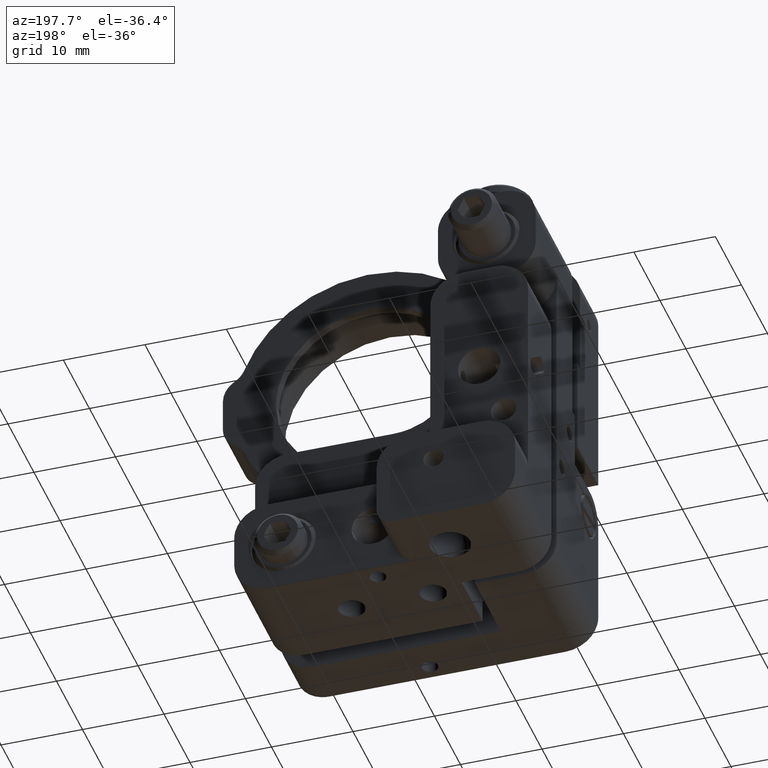
[diagram: clean part render]
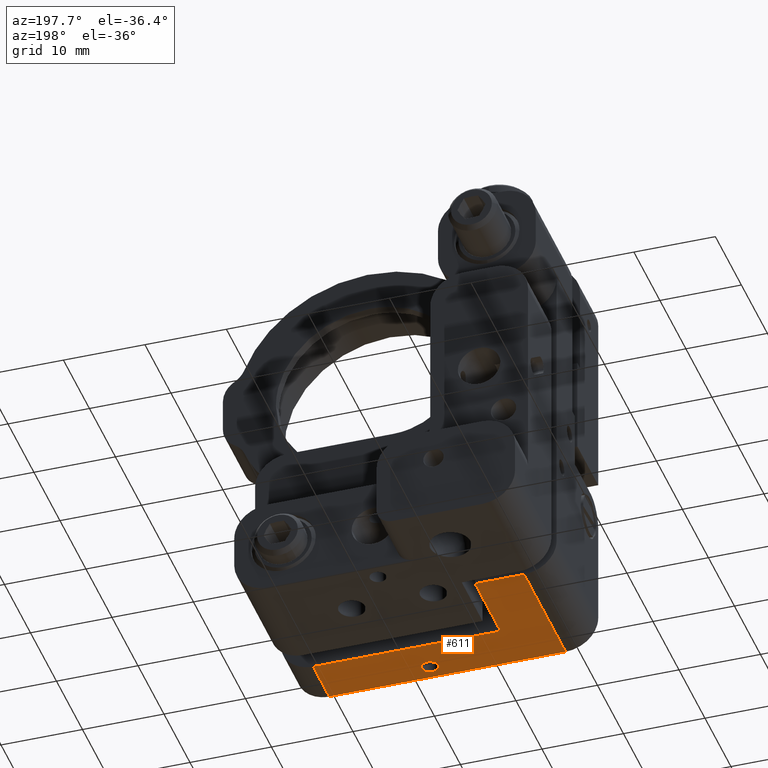
[diagram: same view with one face highlighted and labeled with its STEP entity id]
A machine part, auxiliary view. The second image highlights one B-rep face of the part: STEP entity #611.
In plain terms, the highlighted face is a freeform B-spline surface patch.
Its self-contained STEP definition (entity closure, byte-faithful):
#420=FACE_BOUND('',#1531,.T.);
#611=ADVANCED_FACE('',(#1058,#420),#15889,.T.);
#1058=FACE_OUTER_BOUND('',#1530,.T.);
#1530=EDGE_LOOP('',(#2690,#2691,#2692,#2693,#2694,#2695));
#1531=EDGE_LOOP('',(#2696,#2697));
#2690=ORIENTED_EDGE('',*,*,#12959,.T.);
#2691=ORIENTED_EDGE('',*,*,#12960,.T.);
#2692=ORIENTED_EDGE('',*,*,#12961,.T.);
#2693=ORIENTED_EDGE('',*,*,#12962,.T.);
#2694=ORIENTED_EDGE('',*,*,#12940,.F.);
#2695=ORIENTED_EDGE('',*,*,#12936,.F.);
#2696=ORIENTED_EDGE('',*,*,#12963,.T.);
#2697=ORIENTED_EDGE('',*,*,#12790,.F.);
#4783=PCURVE('',#16044,#7157);
#5027=PCURVE('',#15885,#7401);
#5035=PCURVE('',#15886,#7409);
#5064=PCURVE('',#15889,#7438);
#5065=PCURVE('',#15889,#7439);
#5066=PCURVE('',#15889,#7440);
#5067=PCURVE('',#15889,#7441);
#5068=PCURVE('',#15889,#7442);
#5069=PCURVE('',#15889,#7443);
#5070=PCURVE('',#15889,#7444);
#5071=PCURVE('',#15889,#7445);
#5072=PCURVE('',#15890,#7446);
#5135=PCURVE('',#16081,#7509);
#5137=PCURVE('',#16082,#7511);
#5280=PCURVE('',#15901,#7654);
#5295=PCURVE('',#16099,#7669);
#7157=DEFINITIONAL_REPRESENTATION('',(#9510),#34671);
#7401=DEFINITIONAL_REPRESENTATION('',(#9782),#34671);
#7409=DEFINITIONAL_REPRESENTATION('',(#9788),#34671);
#7438=DEFINITIONAL_REPRESENTATION('',(#9824),#34671);
#7439=DEFINITIONAL_REPRESENTATION('',(#9826),#34671);
#7440=DEFINITIONAL_REPRESENTATION('',(#9828),#34671);
#7441=DEFINITIONAL_REPRESENTATION('',(#9830),#34671);
#7442=DEFINITIONAL_REPRESENTATION('',(#9831),#34671);
#7443=DEFINITIONAL_REPRESENTATION('',(#9832),#34671);
#7444=DEFINITIONAL_REPRESENTATION('',(#14163),#34671);
#7445=DEFINITIONAL_REPRESENTATION('',(#14164),#34671);
#7446=DEFINITIONAL_REPRESENTATION('',(#9833),#34671);
#7509=DEFINITIONAL_REPRESENTATION('',(#9872),#34671);
#7511=DEFINITIONAL_REPRESENTATION('',(#9874),#34671);
#7654=DEFINITIONAL_REPRESENTATION('',(#10007),#34671);
#7669=DEFINITIONAL_REPRESENTATION('',(#10017),#34671);
#9510=B_SPLINE_CURVE_WITH_KNOTS('',1,(#21474,#21475),.UNSPECIFIED.,.F.,
 .F.,(2,2),(0.,3.14159265358979),.UNSPECIFIED.);
#9781=B_SPLINE_CURVE_WITH_KNOTS('',1,(#22861,#22862),.UNSPECIFIED.,.F.,
 .F.,(2,2),(0.,22.9999999999997),.UNSPECIFIED.);
#9782=B_SPLINE_CURVE_WITH_KNOTS('',1,(#22863,#22864),.UNSPECIFIED.,.F.,
 .F.,(2,2),(0.,22.9999999999997),.UNSPECIFIED.);
#9787=B_SPLINE_CURVE_WITH_KNOTS('',1,(#22899,#22900),.UNSPECIFIED.,.F.,
 .F.,(2,2),(0.,9.8),.UNSPECIFIED.);
#9788=B_SPLINE_CURVE_WITH_KNOTS('',1,(#22901,#22902),.UNSPECIFIED.,.F.,
 .F.,(2,2),(0.,9.8),.UNSPECIFIED.);
#9823=B_SPLINE_CURVE_WITH_KNOTS('',1,(#23012,#23013),.UNSPECIFIED.,.F.,
 .F.,(2,2),(-6.2,0.),.UNSPECIFIED.);
#9824=B_SPLINE_CURVE_WITH_KNOTS('',1,(#23014,#23015),.UNSPECIFIED.,.F.,
 .F.,(2,2),(-6.2,0.),.UNSPECIFIED.);
#9825=B_SPLINE_CURVE_WITH_KNOTS('',1,(#23016,#23017),.UNSPECIFIED.,.F.,
 .F.,(2,2),(0.,28.9999999999997),.UNSPECIFIED.);
#9826=B_SPLINE_CURVE_WITH_KNOTS('',1,(#23018,#23019),.UNSPECIFIED.,.F.,
 .F.,(2,2),(0.,28.9999999999997),.UNSPECIFIED.);
#9827=B_SPLINE_CURVE_WITH_KNOTS('',1,(#23020,#23021),.UNSPECIFIED.,.F.,
 .F.,(2,2),(0.,16.),.UNSPECIFIED.);
#9828=B_SPLINE_CURVE_WITH_KNOTS('',1,(#23022,#23023),.UNSPECIFIED.,.F.,
 .F.,(2,2),(0.,16.),.UNSPECIFIED.);
#9829=B_SPLINE_CURVE_WITH_KNOTS('',1,(#23024,#23025),.UNSPECIFIED.,.F.,
 .F.,(2,2),(-6.,0.),.UNSPECIFIED.);
#9830=B_SPLINE_CURVE_WITH_KNOTS('',1,(#23026,#23027),.UNSPECIFIED.,.F.,
 .F.,(2,2),(-6.,0.),.UNSPECIFIED.);
#9831=B_SPLINE_CURVE_WITH_KNOTS('',1,(#23028,#23029),.UNSPECIFIED.,.F.,
 .F.,(2,2),(0.,9.8),.UNSPECIFIED.);
#9832=B_SPLINE_CURVE_WITH_KNOTS('',1,(#23030,#23031),.UNSPECIFIED.,.F.,
 .F.,(2,2),(0.,22.9999999999997),.UNSPECIFIED.);
#9833=B_SPLINE_CURVE_WITH_KNOTS('',1,(#23047,#23048),.UNSPECIFIED.,.F.,
 .F.,(2,2),(-6.,0.),.UNSPECIFIED.);
#9872=B_SPLINE_CURVE_WITH_KNOTS('',1,(#23280,#23281),.UNSPECIFIED.,.F.,
 .F.,(2,2),(-6.2,0.),.UNSPECIFIED.);
#9874=B_SPLINE_CURVE_WITH_KNOTS('',1,(#23284,#23285),.UNSPECIFIED.,.F.,
 .F.,(2,2),(0.,16.),.UNSPECIFIED.);
#10007=B_SPLINE_CURVE_WITH_KNOTS('',1,(#23779,#23780),.UNSPECIFIED.,.F.,
 .F.,(2,2),(0.,28.9999999999997),.UNSPECIFIED.);
#10017=B_SPLINE_CURVE_WITH_KNOTS('',1,(#23844,#23845),.UNSPECIFIED.,.F.,
 .F.,(2,2),(-3.14159265358979,0.),.UNSPECIFIED.);
#11576=SURFACE_CURVE('',#14025,(#4783,#5071),.PCURVE_S1.);
#11722=SURFACE_CURVE('',#9781,(#5027,#5069),.PCURVE_S1.);
#11726=SURFACE_CURVE('',#9787,(#5035,#5068),.PCURVE_S1.);
#11745=SURFACE_CURVE('',#9823,(#5064,#5135),.PCURVE_S1.);
#11746=SURFACE_CURVE('',#9825,(#5065,#5280),.PCURVE_S1.);
#11747=SURFACE_CURVE('',#9827,(#5066,#5137),.PCURVE_S1.);
#11748=SURFACE_CURVE('',#9829,(#5067,#5072),.PCURVE_S1.);
#11749=SURFACE_CURVE('',#14162,(#5070,#5295),.PCURVE_S1.);
#12790=EDGE_CURVE('',#15223,#15224,#11576,.T.);
#12936=EDGE_CURVE('',#15326,#15327,#11722,.T.);
#12940=EDGE_CURVE('',#15327,#15330,#11726,.T.);
#12959=EDGE_CURVE('',#15326,#15342,#11745,.T.);
#12960=EDGE_CURVE('',#15342,#15343,#11746,.T.);
#12961=EDGE_CURVE('',#15343,#15344,#11747,.T.);
#12962=EDGE_CURVE('',#15344,#15330,#11748,.T.);
#12963=EDGE_CURVE('',#15223,#15224,#11749,.T.);
#14025=(
BOUNDED_CURVE()
B_SPLINE_CURVE(2,(#21469,#21470,#21471,#21472,#21473),.UNSPECIFIED.,.F.,
 .F.)
B_SPLINE_CURVE_WITH_KNOTS((3,2,3),(0.,1.57079632679489,3.14159265358979),
 .UNSPECIFIED.)
CURVE()
GEOMETRIC_REPRESENTATION_ITEM()
RATIONAL_B_SPLINE_CURVE((1.,0.707106781186547,1.,0.707106781186548,1.))
REPRESENTATION_ITEM('')
);
#14162=(
BOUNDED_CURVE()
B_SPLINE_CURVE(2,(#23032,#23033,#23034,#23035,#23036),.UNSPECIFIED.,.F.,
 .F.)
B_SPLINE_CURVE_WITH_KNOTS((3,2,3),(-3.14159265358979,-1.5707963267949,0.),
 .UNSPECIFIED.)
CURVE()
GEOMETRIC_REPRESENTATION_ITEM()
RATIONAL_B_SPLINE_CURVE((1.,0.707106781186548,1.,0.707106781186548,1.))
REPRESENTATION_ITEM('')
);
#14163=(
BOUNDED_CURVE()
B_SPLINE_CURVE(2,(#23037,#23038,#23039,#23040,#23041),.UNSPECIFIED.,.F.,
 .F.)
B_SPLINE_CURVE_WITH_KNOTS((3,2,3),(-3.14159265358979,-1.5707963267949,0.),
 .UNSPECIFIED.)
CURVE()
GEOMETRIC_REPRESENTATION_ITEM()
RATIONAL_B_SPLINE_CURVE((1.,0.707106781186548,1.,0.707106781186548,1.))
REPRESENTATION_ITEM('')
);
#14164=(
BOUNDED_CURVE()
B_SPLINE_CURVE(2,(#23042,#23043,#23044,#23045,#23046),.UNSPECIFIED.,.F.,
 .F.)
B_SPLINE_CURVE_WITH_KNOTS((3,2,3),(0.,1.5707963267949,3.14159265358979),
 .UNSPECIFIED.)
CURVE()
GEOMETRIC_REPRESENTATION_ITEM()
RATIONAL_B_SPLINE_CURVE((1.,0.707106781186548,1.,0.707106781186548,1.))
REPRESENTATION_ITEM('')
);
#15223=VERTEX_POINT('',#21056);
#15224=VERTEX_POINT('',#21057);
#15326=VERTEX_POINT('',#21159);
#15327=VERTEX_POINT('',#21160);
#15330=VERTEX_POINT('',#21163);
#15342=VERTEX_POINT('',#21175);
#15343=VERTEX_POINT('',#21176);
#15344=VERTEX_POINT('',#21177);
#15885=B_SPLINE_SURFACE_WITH_KNOTS('',1,1,((#20553,#20554),(#20555,#20556)),
 .UNSPECIFIED.,.F.,.F.,.F.,(2,2),(2,2),(-32.6399999999997,-4.39648317751562E-14),
(-2.22044604925031E-16,14.64),.UNSPECIFIED.);
#15886=B_SPLINE_SURFACE_WITH_KNOTS('',1,1,((#20557,#20558),(#20559,#20560)),
 .UNSPECIFIED.,.F.,.F.,.F.,(2,2),(2,2),(-9.84,-3.33066907387547E-16),(4.44089209850063E-16,
12.),.UNSPECIFIED.);
#15889=B_SPLINE_SURFACE_WITH_KNOTS('',1,1,((#20605,#20606),(#20607,#20608)),
 .UNSPECIFIED.,.F.,.F.,.F.,(2,2),(2,2),(0.,19.44),(-35.0399999999997,-3.24185123190546E-14),
 .UNSPECIFIED.);
#15890=B_SPLINE_SURFACE_WITH_KNOTS('',1,1,((#20609,#20610),(#20611,#20612)),
 .UNSPECIFIED.,.F.,.F.,.F.,(2,2),(2,2),(-44.6399999999998,-3.37507799486048E-14),
(2.93098878501041E-14,50.64),.UNSPECIFIED.);
#15901=B_SPLINE_SURFACE_WITH_KNOTS('',1,1,((#20995,#20996),(#20997,#20998)),
 .UNSPECIFIED.,.F.,.F.,.F.,(2,2),(2,2),(4.39648317751562E-14,44.6399999999997),
(-3.10862446895044E-15,20.64),.UNSPECIFIED.);
#16044=(
BOUNDED_SURFACE()
B_SPLINE_SURFACE(1,2,((#19931,#19932,#19933,#19934,#19935),(#19936,#19937,
#19938,#19939,#19940)),.UNSPECIFIED.,.F.,.F.,.F.)
B_SPLINE_SURFACE_WITH_KNOTS((2,2),(3,2,3),(0.,3.16591477021212),(0.,1.5707963267949,
3.14159265358979),.UNSPECIFIED.)
GEOMETRIC_REPRESENTATION_ITEM()
RATIONAL_B_SPLINE_SURFACE(((1.,0.707106781186548,1.,0.707106781186548,1.),
(1.,0.707106781186548,1.,0.707106781186548,1.)))
REPRESENTATION_ITEM('')
SURFACE()
);
#16081=(
BOUNDED_SURFACE()
B_SPLINE_SURFACE(2,1,((#20657,#20658),(#20659,#20660),(#20661,#20662),(#20663,
#20664),(#20665,#20666),(#20667,#20668),(#20669,#20670),(#20671,#20672),
(#20673,#20674)),.UNSPECIFIED.,.T.,.F.,.F.)
B_SPLINE_SURFACE_WITH_KNOTS((3,2,2,2,3),(2,2),(0.,1.5707963267949,3.14159265358979,
4.71238898038469,6.28318530717959),(0.,7.68),.UNSPECIFIED.)
GEOMETRIC_REPRESENTATION_ITEM()
RATIONAL_B_SPLINE_SURFACE(((1.,1.),(0.707106781186548,0.707106781186548),
(1.,1.),(0.707106781186548,0.707106781186548),(1.,1.),(0.707106781186548,
0.707106781186548),(1.,1.),(0.707106781186548,0.707106781186548),(1.,1.)))
REPRESENTATION_ITEM('')
SURFACE()
);
#16082=(
BOUNDED_SURFACE()
B_SPLINE_SURFACE(2,1,((#20675,#20676),(#20677,#20678),(#20679,#20680),(#20681,
#20682),(#20683,#20684),(#20685,#20686),(#20687,#20688),(#20689,#20690),
(#20691,#20692)),.UNSPECIFIED.,.T.,.F.,.F.)
B_SPLINE_SURFACE_WITH_KNOTS((3,2,2,2,3),(2,2),(0.,1.5707963267949,3.14159265358979,
4.71238898038469,6.28318530717959),(0.,19.44),.UNSPECIFIED.)
GEOMETRIC_REPRESENTATION_ITEM()
RATIONAL_B_SPLINE_SURFACE(((1.,1.),(0.707106781186548,0.707106781186548),
(1.,1.),(0.707106781186548,0.707106781186548),(1.,1.),(0.707106781186548,
0.707106781186548),(1.,1.),(0.707106781186548,0.707106781186548),(1.,1.)))
REPRESENTATION_ITEM('')
SURFACE()
);
#16099=(
BOUNDED_SURFACE()
B_SPLINE_SURFACE(1,2,((#21009,#21010,#21011,#21012,#21013),(#21014,#21015,
#21016,#21017,#21018)),.UNSPECIFIED.,.F.,.F.,.F.)
B_SPLINE_SURFACE_WITH_KNOTS((2,2),(3,2,3),(0.,3.16591477021212),(3.14159265358979,
4.71238898038469,6.28318530717959),.UNSPECIFIED.)
GEOMETRIC_REPRESENTATION_ITEM()
RATIONAL_B_SPLINE_SURFACE(((1.,0.707106781186548,1.,0.707106781186548,1.),
(1.,0.707106781186548,1.,0.707106781186548,1.)))
REPRESENTATION_ITEM('')
SURFACE()
);
#19931=CARTESIAN_POINT('',(95.6464644282153,-6.83857415112817,-8.));
#19932=CARTESIAN_POINT('',(95.6464644282153,-6.83857415112817,-9.));
#19933=CARTESIAN_POINT('',(94.6464644282153,-6.83857415112817,-9.));
#19934=CARTESIAN_POINT('',(93.6464644282153,-6.83857415112817,-9.));
#19935=CARTESIAN_POINT('',(93.6464644282153,-6.83857415112817,-8.));
#19936=CARTESIAN_POINT('',(95.6464644282153,-3.67265938091605,-8.));
#19937=CARTESIAN_POINT('',(95.6464644282153,-3.67265938091605,-9.));
#19938=CARTESIAN_POINT('',(94.6464644282153,-3.67265938091605,-9.));
#19939=CARTESIAN_POINT('',(93.6464644282153,-3.67265938091605,-9.));
#19940=CARTESIAN_POINT('',(93.6464644282153,-3.67265938091605,-8.));
#20553=CARTESIAN_POINT('',(74.8264644282153,-7.79474792027717,-3.8));
#20554=CARTESIAN_POINT('',(74.8264644282153,6.84525207972284,-3.8));
#20555=CARTESIAN_POINT('',(107.466464428215,-7.79474792027717,-3.8));
#20556=CARTESIAN_POINT('',(107.466464428215,6.84525207972284,-3.8));
#20557=CARTESIAN_POINT('',(104.646464428215,2.44525207972283,-4.9));
#20558=CARTESIAN_POINT('',(104.646464428215,2.44525207972283,7.1));
#20559=CARTESIAN_POINT('',(104.646464428215,-7.39474792027717,-4.9));
#20560=CARTESIAN_POINT('',(104.646464428215,-7.39474792027717,7.1));
#20605=CARTESIAN_POINT('',(78.6264644282153,-6.47474792027716,7.72));
#20606=CARTESIAN_POINT('',(113.666464428215,-6.47474792027716,7.72));
#20607=CARTESIAN_POINT('',(78.6264644282153,-6.47474792027716,-11.72));
#20608=CARTESIAN_POINT('',(113.666464428215,-6.47474792027716,-11.72));
#20609=CARTESIAN_POINT('',(73.8264644282152,-10.7947479202772,6.));
#20610=CARTESIAN_POINT('',(73.8264644282152,39.8452520797228,6.));
#20611=CARTESIAN_POINT('',(118.466464428215,-10.7947479202772,6.));
#20612=CARTESIAN_POINT('',(118.466464428215,39.8452520797228,6.));
#20657=CARTESIAN_POINT('',(81.6464644282153,1.52525207972284,-3.06));
#20658=CARTESIAN_POINT('',(81.6464644282153,1.52525207972284,-10.74));
#20659=CARTESIAN_POINT('',(85.6464644282153,1.52525207972284,-3.06));
#20660=CARTESIAN_POINT('',(85.6464644282153,1.52525207972284,-10.74));
#20661=CARTESIAN_POINT('',(85.6464644282153,-2.47474792027716,-3.06));
#20662=CARTESIAN_POINT('',(85.6464644282153,-2.47474792027716,-10.74));
#20663=CARTESIAN_POINT('',(85.6464644282153,-6.47474792027716,-3.06));
#20664=CARTESIAN_POINT('',(85.6464644282153,-6.47474792027716,-10.74));
#20665=CARTESIAN_POINT('',(81.6464644282153,-6.47474792027716,-3.06));
#20666=CARTESIAN_POINT('',(81.6464644282153,-6.47474792027716,-10.74));
#20667=CARTESIAN_POINT('',(77.6464644282153,-6.47474792027716,-3.06));
#20668=CARTESIAN_POINT('',(77.6464644282153,-6.47474792027716,-10.74));
#20669=CARTESIAN_POINT('',(77.6464644282153,-2.47474792027716,-3.06));
#20670=CARTESIAN_POINT('',(77.6464644282153,-2.47474792027716,-10.74));
#20671=CARTESIAN_POINT('',(77.6464644282153,1.52525207972284,-3.06));
#20672=CARTESIAN_POINT('',(77.6464644282153,1.52525207972284,-10.74));
#20673=CARTESIAN_POINT('',(81.6464644282153,1.52525207972284,-3.06));
#20674=CARTESIAN_POINT('',(81.6464644282153,1.52525207972284,-10.74));
#20675=CARTESIAN_POINT('',(110.646464428215,1.52525207972283,7.72));
#20676=CARTESIAN_POINT('',(110.646464428215,1.52525207972283,-11.72));
#20677=CARTESIAN_POINT('',(114.646464428215,1.52525207972283,7.72));
#20678=CARTESIAN_POINT('',(114.646464428215,1.52525207972283,-11.72));
#20679=CARTESIAN_POINT('',(114.646464428215,-2.47474792027717,7.72));
#20680=CARTESIAN_POINT('',(114.646464428215,-2.47474792027717,-11.72));
#20681=CARTESIAN_POINT('',(114.646464428215,-6.47474792027717,7.72));
#20682=CARTESIAN_POINT('',(114.646464428215,-6.47474792027717,-11.72));
#20683=CARTESIAN_POINT('',(110.646464428215,-6.47474792027717,7.72));
#20684=CARTESIAN_POINT('',(110.646464428215,-6.47474792027717,-11.72));
#20685=CARTESIAN_POINT('',(106.646464428215,-6.47474792027717,7.72));
#20686=CARTESIAN_POINT('',(106.646464428215,-6.47474792027717,-11.72));
#20687=CARTESIAN_POINT('',(106.646464428215,-2.47474792027717,7.72));
#20688=CARTESIAN_POINT('',(106.646464428215,-2.47474792027717,-11.72));
#20689=CARTESIAN_POINT('',(106.646464428215,1.52525207972283,7.72));
#20690=CARTESIAN_POINT('',(106.646464428215,1.52525207972283,-11.72));
#20691=CARTESIAN_POINT('',(110.646464428215,1.52525207972283,7.72));
#20692=CARTESIAN_POINT('',(110.646464428215,1.52525207972283,-11.72));
#20995=CARTESIAN_POINT('',(118.466464428215,-8.29474792027717,-10.));
#20996=CARTESIAN_POINT('',(118.466464428215,12.3452520797228,-10.));
#20997=CARTESIAN_POINT('',(73.8264644282153,-8.29474792027717,-10.));
#20998=CARTESIAN_POINT('',(73.8264644282153,12.3452520797228,-10.));
#21009=CARTESIAN_POINT('',(93.6464644282153,-6.83857415112817,-8.));
#21010=CARTESIAN_POINT('',(93.6464644282153,-6.83857415112817,-7.));
#21011=CARTESIAN_POINT('',(94.6464644282153,-6.83857415112817,-7.));
#21012=CARTESIAN_POINT('',(95.6464644282153,-6.83857415112817,-7.));
#21013=CARTESIAN_POINT('',(95.6464644282153,-6.83857415112817,-8.));
#21014=CARTESIAN_POINT('',(93.6464644282153,-3.67265938091605,-8.));
#21015=CARTESIAN_POINT('',(93.6464644282153,-3.67265938091605,-7.));
#21016=CARTESIAN_POINT('',(94.6464644282153,-3.67265938091605,-7.));
#21017=CARTESIAN_POINT('',(95.6464644282153,-3.67265938091605,-7.));
#21018=CARTESIAN_POINT('',(95.6464644282153,-3.67265938091605,-8.));
#21056=CARTESIAN_POINT('',(93.6464644282153,-6.47474792027716,-8.));
#21057=CARTESIAN_POINT('',(95.6464644282153,-6.47474792027716,-8.));
#21159=CARTESIAN_POINT('',(81.6464644282153,-6.47474792027716,-3.8));
#21160=CARTESIAN_POINT('',(104.646464428215,-6.47474792027717,-3.8));
#21163=CARTESIAN_POINT('',(104.646464428215,-6.47474792027717,6.));
#21175=CARTESIAN_POINT('',(81.6464644282153,-6.47474792027716,-10.));
#21176=CARTESIAN_POINT('',(110.646464428215,-6.47474792027717,-10.));
#21177=CARTESIAN_POINT('',(110.646464428215,-6.47474792027717,6.));
#21469=CARTESIAN_POINT('',(93.6464644282153,-6.47474792027716,-8.));
#21470=CARTESIAN_POINT('',(93.6464644282153,-6.47474792027716,-9.));
#21471=CARTESIAN_POINT('',(94.6464644282153,-6.47474792027716,-9.));
#21472=CARTESIAN_POINT('',(95.6464644282153,-6.47474792027716,-9.));
#21473=CARTESIAN_POINT('',(95.6464644282153,-6.47474792027716,-8.));
#21474=CARTESIAN_POINT('',(0.363826230851012,3.14159265358979));
#21475=CARTESIAN_POINT('',(0.363826230851011,1.4432899320127E-15));
#22861=CARTESIAN_POINT('',(81.6464644282153,-6.47474792027716,-3.8));
#22862=CARTESIAN_POINT('',(104.646464428215,-6.47474792027717,-3.8));
#22863=CARTESIAN_POINT('',(-25.8199999999997,1.32000000000001));
#22864=CARTESIAN_POINT('',(-2.82000000000001,1.32));
#22899=CARTESIAN_POINT('',(104.646464428215,-6.47474792027717,-3.8));
#22900=CARTESIAN_POINT('',(104.646464428215,-6.47474792027717,6.));
#22901=CARTESIAN_POINT('',(-0.92,1.1));
#22902=CARTESIAN_POINT('',(-0.92,10.9));
#23012=CARTESIAN_POINT('',(81.6464644282153,-6.47474792027716,-3.8));
#23013=CARTESIAN_POINT('',(81.6464644282153,-6.47474792027716,-10.));
#23014=CARTESIAN_POINT('',(11.52,-32.0199999999997));
#23015=CARTESIAN_POINT('',(17.72,-32.0199999999997));
#23016=CARTESIAN_POINT('',(81.6464644282153,-6.47474792027716,-10.));
#23017=CARTESIAN_POINT('',(110.646464428215,-6.47474792027717,-10.));
#23018=CARTESIAN_POINT('',(17.72,-32.0199999999997));
#23019=CARTESIAN_POINT('',(17.72,-3.02));
#23020=CARTESIAN_POINT('',(110.646464428215,-6.47474792027717,-10.));
#23021=CARTESIAN_POINT('',(110.646464428215,-6.47474792027717,6.));
#23022=CARTESIAN_POINT('',(17.72,-3.02));
#23023=CARTESIAN_POINT('',(1.72,-3.02));
#23024=CARTESIAN_POINT('',(110.646464428215,-6.47474792027717,6.));
#23025=CARTESIAN_POINT('',(104.646464428215,-6.47474792027717,6.));
#23026=CARTESIAN_POINT('',(1.72,-3.02));
#23027=CARTESIAN_POINT('',(1.72,-9.02));
#23028=CARTESIAN_POINT('',(11.52,-9.02));
#23029=CARTESIAN_POINT('',(1.72,-9.02));
#23030=CARTESIAN_POINT('',(11.52,-32.0199999999997));
#23031=CARTESIAN_POINT('',(11.52,-9.02));
#23032=CARTESIAN_POINT('',(93.6464644282153,-6.47474792027716,-8.));
#23033=CARTESIAN_POINT('',(93.6464644282153,-6.47474792027716,-7.));
#23034=CARTESIAN_POINT('',(94.6464644282153,-6.47474792027716,-7.));
#23035=CARTESIAN_POINT('',(95.6464644282153,-6.47474792027716,-7.));
#23036=CARTESIAN_POINT('',(95.6464644282153,-6.47474792027716,-8.));
#23037=CARTESIAN_POINT('',(15.72,-20.0199999999997));
#23038=CARTESIAN_POINT('',(14.72,-20.0199999999997));
#23039=CARTESIAN_POINT('',(14.72,-19.0199999999997));
#23040=CARTESIAN_POINT('',(14.72,-18.0199999999997));
#23041=CARTESIAN_POINT('',(15.72,-18.0199999999997));
#23042=CARTESIAN_POINT('',(15.72,-20.0199999999997));
#23043=CARTESIAN_POINT('',(16.72,-20.0199999999997));
#23044=CARTESIAN_POINT('',(16.72,-19.0199999999997));
#23045=CARTESIAN_POINT('',(16.72,-18.0199999999997));
#23046=CARTESIAN_POINT('',(15.72,-18.0199999999997));
#23047=CARTESIAN_POINT('',(-7.82000000000001,4.32000000000003));
#23048=CARTESIAN_POINT('',(-13.82,4.32000000000003));
#23280=CARTESIAN_POINT('',(3.14159265358979,0.74));
#23281=CARTESIAN_POINT('',(3.14159265358979,6.94));
#23284=CARTESIAN_POINT('',(3.14159265358979,17.72));
#23285=CARTESIAN_POINT('',(3.14159265358979,1.72));
#23779=CARTESIAN_POINT('',(36.8199999999997,1.82000000000001));
#23780=CARTESIAN_POINT('',(7.82000000000001,1.82));
#23844=CARTESIAN_POINT('',(0.363826230851011,3.14159265358979));
#23845=CARTESIAN_POINT('',(0.363826230851009,6.28318530717959));
#34671=(
GEOMETRIC_REPRESENTATION_CONTEXT(2)
PARAMETRIC_REPRESENTATION_CONTEXT()
REPRESENTATION_CONTEXT('pspace','')
);